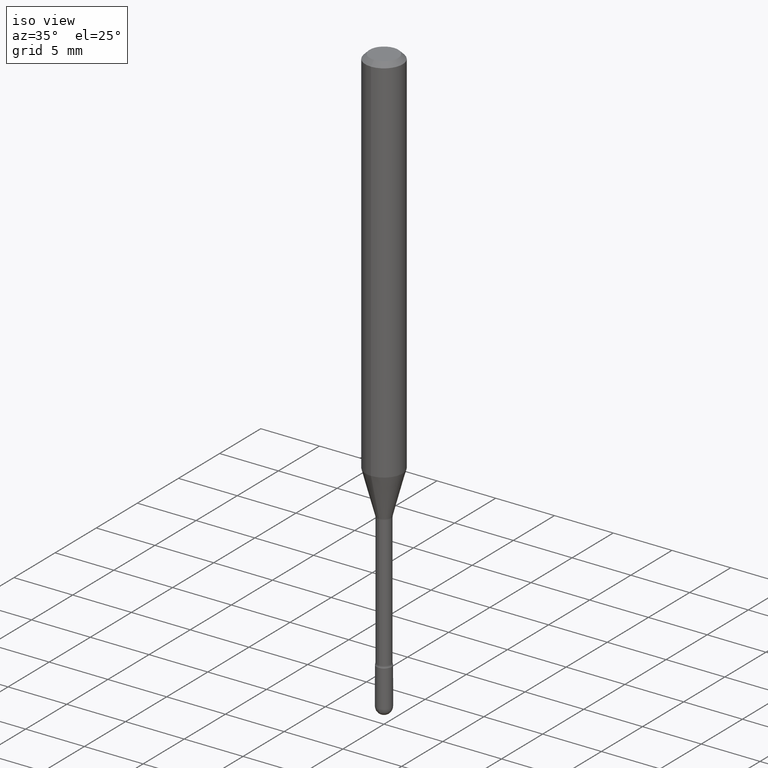
[diagram: clean part render]
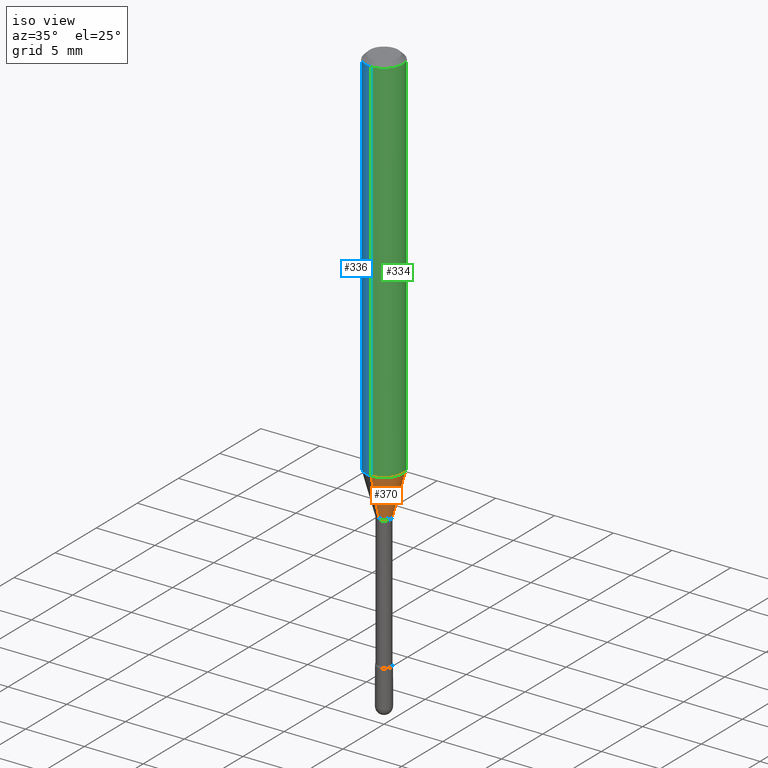
[diagram: same view with three faces highlighted in distinct colors, each labeled with its STEP entity id]
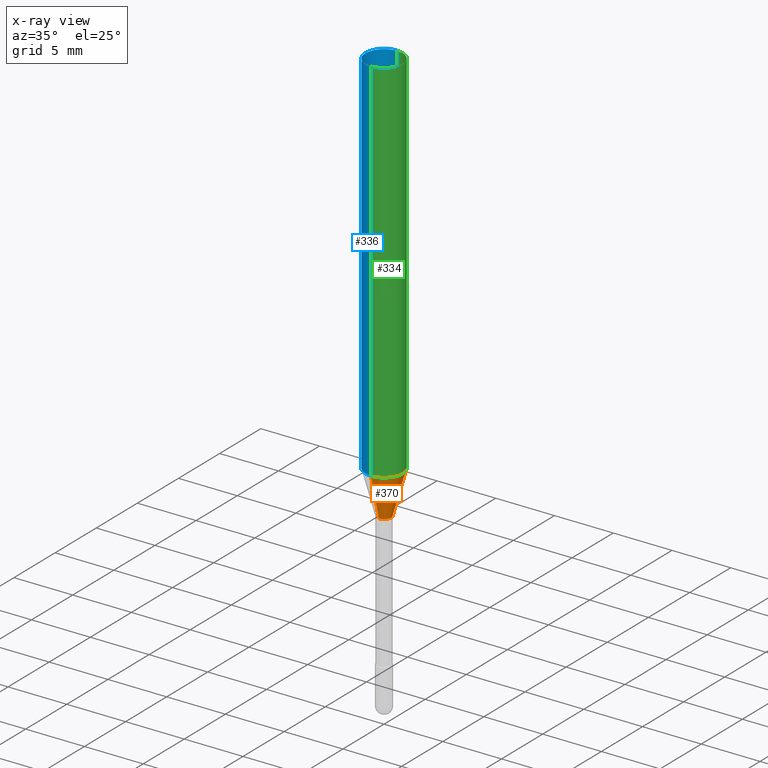
[diagram: x-ray of the same camera — body ghosted, the three highlighted faces saturated]
A machine part, iso view with three faces highlighted in distinct colors.
The next image is the same camera in x-ray (body ghosted, the three faces saturated) — at least one of them is partly hidden behind the body in this view.
Their STEP definitions:

[orange] entity #370 — the highlighted conical surface has half-angle 15 deg.
#25 = DIRECTION ( 'NONE',  ( -2.445500038019932902E-29, 3.491436613078111990E-15, 1.000000000000000000 ) ) ;
#41 = AXIS2_PLACEMENT_3D ( 'NONE', #181, #185, #400 ) ;
#47 = CARTESIAN_POINT ( 'NONE',  ( 3.419035266276159632E-29, -4.881351349210060803E-15, -1.398092501787273179 ) ) ;
#64 = EDGE_CURVE ( 'NONE', #83, #276, #517, .T. ) ;
#70 = CIRCLE ( 'NONE', #338, 0.02401111260566398883 ) ;
#80 = DIRECTION ( 'NONE',  ( 1.839019923739600710E-15, 0.2588190451025250138, 0.9659258262890670910 ) ) ;
#83 = VERTEX_POINT ( 'NONE', #312 ) ;
#95 = EDGE_CURVE ( 'NONE', #248, #276, #523, .T. ) ;
#109 = CONICAL_SURFACE ( 'NONE', #332, 0.02401111260566398883, 0.2617993877991502960 ) ;
#117 = VERTEX_POINT ( 'NONE', #134 ) ;
#134 = CARTESIAN_POINT ( 'NONE',  ( -1.676687031750396736E-16, -0.02401111260566887035, -1.398092501787273179 ) ) ;
#181 = CARTESIAN_POINT ( 'NONE',  ( 3.067757567947629256E-29, -4.379832723884224406E-15, -1.254450018504814413 ) ) ;
#185 = DIRECTION ( 'NONE',  ( -2.445500038019932902E-29, 3.491436613078111990E-15, 1.000000000000000000 ) ) ;
#189 = CARTESIAN_POINT ( 'NONE',  ( 4.440892098500930859E-16, 0.06249999999999559380, -1.254450018504814635 ) ) ;
#232 = CARTESIAN_POINT ( 'NONE',  ( 3.073492131224253537E-16, 0.02401111260565910385, -1.398092501787273179 ) ) ;
#236 = DIRECTION ( 'NONE',  ( -2.445500038019932902E-29, 3.491436613078111990E-15, 1.000000000000000000 ) ) ;
#248 = VERTEX_POINT ( 'NONE', #232 ) ;
#263 = CARTESIAN_POINT ( 'NONE',  ( 1.706092163947573256E-16, 0.02401111260565910385, -1.398092501787273179 ) ) ;
#273 = DIRECTION ( 'NONE',  ( -1.807323732225330534E-15, -0.2588190451025182415, 0.9659258262890689783 ) ) ;
#276 = VERTEX_POINT ( 'NONE', #189 ) ;
#312 = CARTESIAN_POINT ( 'NONE',  ( -4.364351673553610517E-16, -0.06250000000000439926, -1.254450018504814190 ) ) ;
#320 = ORIENTED_EDGE ( 'NONE', *, *, #422, .T. ) ;
#332 = AXIS2_PLACEMENT_3D ( 'NONE', #47, #236, #490 ) ;
#335 = DIRECTION ( 'NONE',  ( -6.982962677686265133E-15, -1.000000000000000000, 0.000000000000000000 ) ) ;
#338 = AXIS2_PLACEMENT_3D ( 'NONE', #369, #25, #335 ) ;
#348 = VECTOR ( 'NONE', #273, 39.37007874015748143 ) ;
#358 = ORIENTED_EDGE ( 'NONE', *, *, #374, .F. ) ;
#359 = VECTOR ( 'NONE', #80, 39.37007874015748143 ) ;
#362 = ORIENTED_EDGE ( 'NONE', *, *, #64, .F. ) ;
#369 = CARTESIAN_POINT ( 'NONE',  ( 3.419035266276159632E-29, -4.881351349210060803E-15, -1.398092501787273179 ) ) ;
#370 = ADVANCED_FACE ( 'NONE', ( #391 ), #109, .T. ) ;
#374 = EDGE_CURVE ( 'NONE', #117, #83, #497, .T. ) ;
#381 = ORIENTED_EDGE ( 'NONE', *, *, #95, .T. ) ;
#391 = FACE_OUTER_BOUND ( 'NONE', #439, .T. ) ;
#400 = DIRECTION ( 'NONE',  ( -6.982962677686265922E-15, -1.000000000000000000, 4.370956789862821150E-15 ) ) ;
#422 = EDGE_CURVE ( 'NONE', #117, #248, #70, .T. ) ;
#439 = EDGE_LOOP ( 'NONE', ( #320, #381, #362, #358 ) ) ;
#490 = DIRECTION ( 'NONE',  ( -6.982962677686265133E-15, -1.000000000000000000, 0.000000000000000000 ) ) ;
#497 = LINE ( 'NONE', #537, #348 ) ;
#517 = CIRCLE ( 'NONE', #41, 0.06250000000000000000 ) ;
#523 = LINE ( 'NONE', #263, #359 ) ;
#537 = CARTESIAN_POINT ( 'NONE',  ( -1.676687031750396736E-16, -0.02401111260566887035, -1.398092501787273179 ) ) ;

[blue] entity #336 — the highlighted cylindrical surface (edge-blend (fillet) strip) has radius 1.5875 mm, axis along (-0, 0, 1).
#5 = CARTESIAN_POINT ( 'NONE',  ( 4.440892098500934804E-16, 0.06249999999999995143, -0.01500000000000030129 ) ) ;
#16 = DIRECTION ( 'NONE',  ( -6.982962677686265922E-15, -1.000000000000000000, 3.491436613078110807E-15 ) ) ;
#39 = EDGE_CURVE ( 'NONE', #83, #204, #49, .T. ) ;
#49 = LINE ( 'NONE', #239, #465 ) ;
#52 = CARTESIAN_POINT ( 'NONE',  ( -4.364351673553912750E-16, -0.06250000000000005551, -0.01499999999999986587 ) ) ;
#53 = EDGE_LOOP ( 'NONE', ( #502, #501, #211, #536 ) ) ;
#76 = AXIS2_PLACEMENT_3D ( 'NONE', #289, #408, #457 ) ;
#83 = VERTEX_POINT ( 'NONE', #312 ) ;
#94 = DIRECTION ( 'NONE',  ( -2.445500038019932902E-29, 3.491436613078111990E-15, 1.000000000000000000 ) ) ;
#97 = CYLINDRICAL_SURFACE ( 'NONE', #424, 0.06250000000000000000 ) ;
#112 = CIRCLE ( 'NONE', #76, 0.06250000000000000000 ) ;
#113 = CARTESIAN_POINT ( 'NONE',  ( 3.668250057029919339E-31, -5.237154919617196828E-17, -0.01500000000000008271 ) ) ;
#136 = FACE_OUTER_BOUND ( 'NONE', #53, .T. ) ;
#145 = DIRECTION ( 'NONE',  ( -2.445500038019932902E-29, 3.491436613078111990E-15, 1.000000000000000000 ) ) ;
#165 = EDGE_CURVE ( 'NONE', #250, #204, #209, .T. ) ;
#189 = CARTESIAN_POINT ( 'NONE',  ( 4.440892098500930859E-16, 0.06249999999999559380, -1.254450018504814635 ) ) ;
#194 = CARTESIAN_POINT ( 'NONE',  ( 4.440892098500625669E-16, 0.06250000000000000000, 2.598586105738640638E-16 ) ) ;
#197 = CARTESIAN_POINT ( 'NONE',  ( -1.169113584055446105E-44, 1.669184350826100908E-30, 4.780733988912460139E-16 ) ) ;
#204 = VERTEX_POINT ( 'NONE', #52 ) ;
#209 = CIRCLE ( 'NONE', #411, 0.06250000000000000000 ) ;
#211 = ORIENTED_EDGE ( 'NONE', *, *, #39, .T. ) ;
#217 = VECTOR ( 'NONE', #94, 39.37007874015748143 ) ;
#239 = CARTESIAN_POINT ( 'NONE',  ( -4.364351673553916201E-16, -0.06250000000000000000, 6.962881872086279640E-16 ) ) ;
#250 = VERTEX_POINT ( 'NONE', #5 ) ;
#268 = DIRECTION ( 'NONE',  ( -2.445500038019932902E-29, 3.491436613078111990E-15, 1.000000000000000000 ) ) ;
#276 = VERTEX_POINT ( 'NONE', #189 ) ;
#289 = CARTESIAN_POINT ( 'NONE',  ( 3.067757567947629256E-29, -4.379832723884224406E-15, -1.254450018504814413 ) ) ;
#290 = EDGE_CURVE ( 'NONE', #276, #250, #407, .T. ) ;
#291 = DIRECTION ( 'NONE',  ( -6.982962677686265922E-15, -1.000000000000000000, 3.483106191921935554E-15 ) ) ;
#312 = CARTESIAN_POINT ( 'NONE',  ( -4.364351673553610517E-16, -0.06250000000000439926, -1.254450018504814190 ) ) ;
#336 = ADVANCED_FACE ( 'NONE', ( #136 ), #97, .T. ) ;
#407 = LINE ( 'NONE', #194, #217 ) ;
#408 = DIRECTION ( 'NONE',  ( -2.445500038019932902E-29, 3.491436613078111990E-15, 1.000000000000000000 ) ) ;
#409 = DIRECTION ( 'NONE',  ( -2.445500038019932902E-29, 3.491436613078111990E-15, 1.000000000000000000 ) ) ;
#411 = AXIS2_PLACEMENT_3D ( 'NONE', #113, #409, #291 ) ;
#417 = EDGE_CURVE ( 'NONE', #276, #83, #112, .T. ) ;
#424 = AXIS2_PLACEMENT_3D ( 'NONE', #197, #268, #16 ) ;
#457 = DIRECTION ( 'NONE',  ( -6.982962677686265922E-15, -1.000000000000000000, 4.370956789862821150E-15 ) ) ;
#465 = VECTOR ( 'NONE', #145, 39.37007874015748143 ) ;
#501 = ORIENTED_EDGE ( 'NONE', *, *, #417, .T. ) ;
#502 = ORIENTED_EDGE ( 'NONE', *, *, #290, .F. ) ;
#536 = ORIENTED_EDGE ( 'NONE', *, *, #165, .F. ) ;

[green] entity #334 — the highlighted cylindrical surface (edge-blend (fillet) strip) has radius 1.5875 mm, axis along (-0, 0, 1).
#5 = CARTESIAN_POINT ( 'NONE',  ( 4.440892098500934804E-16, 0.06249999999999995143, -0.01500000000000030129 ) ) ;
#22 = DIRECTION ( 'NONE',  ( -2.445500038019932902E-29, 3.491436613078111990E-15, 1.000000000000000000 ) ) ;
#29 = CIRCLE ( 'NONE', #90, 0.06250000000000000000 ) ;
#39 = EDGE_CURVE ( 'NONE', #83, #204, #49, .T. ) ;
#41 = AXIS2_PLACEMENT_3D ( 'NONE', #181, #185, #400 ) ;
#49 = LINE ( 'NONE', #239, #465 ) ;
#52 = CARTESIAN_POINT ( 'NONE',  ( -4.364351673553912750E-16, -0.06250000000000005551, -0.01499999999999986587 ) ) ;
#56 = EDGE_LOOP ( 'NONE', ( #281, #377, #214, #233 ) ) ;
#64 = EDGE_CURVE ( 'NONE', #83, #276, #517, .T. ) ;
#83 = VERTEX_POINT ( 'NONE', #312 ) ;
#90 = AXIS2_PLACEMENT_3D ( 'NONE', #505, #22, #327 ) ;
#91 = FACE_OUTER_BOUND ( 'NONE', #56, .T. ) ;
#94 = DIRECTION ( 'NONE',  ( -2.445500038019932902E-29, 3.491436613078111990E-15, 1.000000000000000000 ) ) ;
#145 = DIRECTION ( 'NONE',  ( -2.445500038019932902E-29, 3.491436613078111990E-15, 1.000000000000000000 ) ) ;
#181 = CARTESIAN_POINT ( 'NONE',  ( 3.067757567947629256E-29, -4.379832723884224406E-15, -1.254450018504814413 ) ) ;
#185 = DIRECTION ( 'NONE',  ( -2.445500038019932902E-29, 3.491436613078111990E-15, 1.000000000000000000 ) ) ;
#189 = CARTESIAN_POINT ( 'NONE',  ( 4.440892098500930859E-16, 0.06249999999999559380, -1.254450018504814635 ) ) ;
#190 = AXIS2_PLACEMENT_3D ( 'NONE', #503, #436, #450 ) ;
#194 = CARTESIAN_POINT ( 'NONE',  ( 4.440892098500625669E-16, 0.06250000000000000000, 2.598586105738640638E-16 ) ) ;
#204 = VERTEX_POINT ( 'NONE', #52 ) ;
#214 = ORIENTED_EDGE ( 'NONE', *, *, #475, .F. ) ;
#217 = VECTOR ( 'NONE', #94, 39.37007874015748143 ) ;
#233 = ORIENTED_EDGE ( 'NONE', *, *, #39, .F. ) ;
#239 = CARTESIAN_POINT ( 'NONE',  ( -4.364351673553916201E-16, -0.06250000000000000000, 6.962881872086279640E-16 ) ) ;
#250 = VERTEX_POINT ( 'NONE', #5 ) ;
#276 = VERTEX_POINT ( 'NONE', #189 ) ;
#279 = CYLINDRICAL_SURFACE ( 'NONE', #190, 0.06250000000000000000 ) ;
#281 = ORIENTED_EDGE ( 'NONE', *, *, #64, .T. ) ;
#290 = EDGE_CURVE ( 'NONE', #276, #250, #407, .T. ) ;
#312 = CARTESIAN_POINT ( 'NONE',  ( -4.364351673553610517E-16, -0.06250000000000439926, -1.254450018504814190 ) ) ;
#327 = DIRECTION ( 'NONE',  ( -6.982962677686265922E-15, -1.000000000000000000, 3.483106191921935554E-15 ) ) ;
#334 = ADVANCED_FACE ( 'NONE', ( #91 ), #279, .T. ) ;
#377 = ORIENTED_EDGE ( 'NONE', *, *, #290, .T. ) ;
#400 = DIRECTION ( 'NONE',  ( -6.982962677686265922E-15, -1.000000000000000000, 4.370956789862821150E-15 ) ) ;
#407 = LINE ( 'NONE', #194, #217 ) ;
#436 = DIRECTION ( 'NONE',  ( -2.445500038019932902E-29, 3.491436613078111990E-15, 1.000000000000000000 ) ) ;
#450 = DIRECTION ( 'NONE',  ( -6.982962677686265922E-15, -1.000000000000000000, 3.491436613078110807E-15 ) ) ;
#465 = VECTOR ( 'NONE', #145, 39.37007874015748143 ) ;
#475 = EDGE_CURVE ( 'NONE', #204, #250, #29, .T. ) ;
#503 = CARTESIAN_POINT ( 'NONE',  ( -1.169113584055446105E-44, 1.669184350826100908E-30, 4.780733988912460139E-16 ) ) ;
#505 = CARTESIAN_POINT ( 'NONE',  ( 3.668250057029919339E-31, -5.237154919617196828E-17, -0.01500000000000008271 ) ) ;
#517 = CIRCLE ( 'NONE', #41, 0.06250000000000000000 ) ;